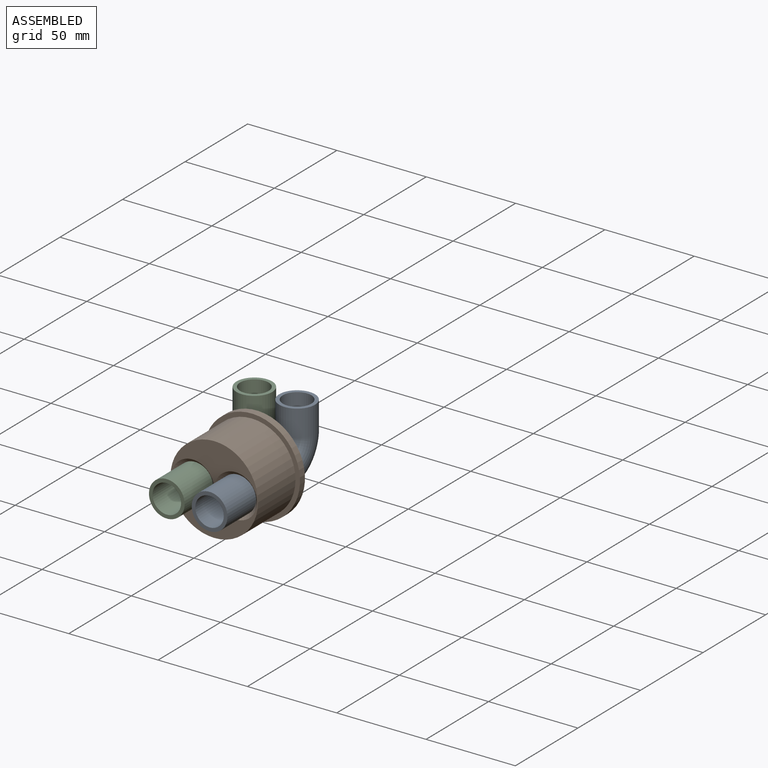
[diagram: assembled view]
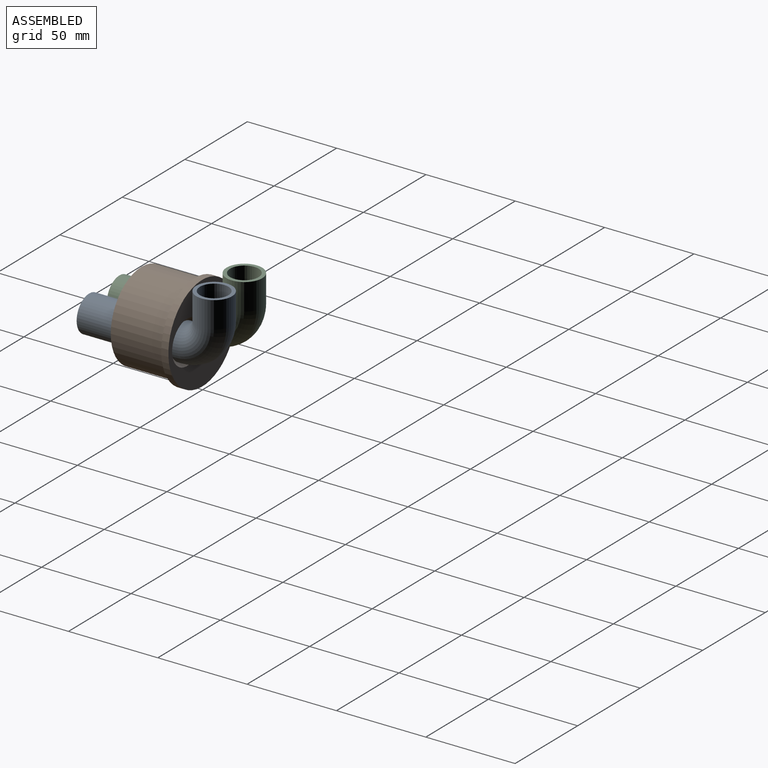
[diagram: assembled view, second angle]
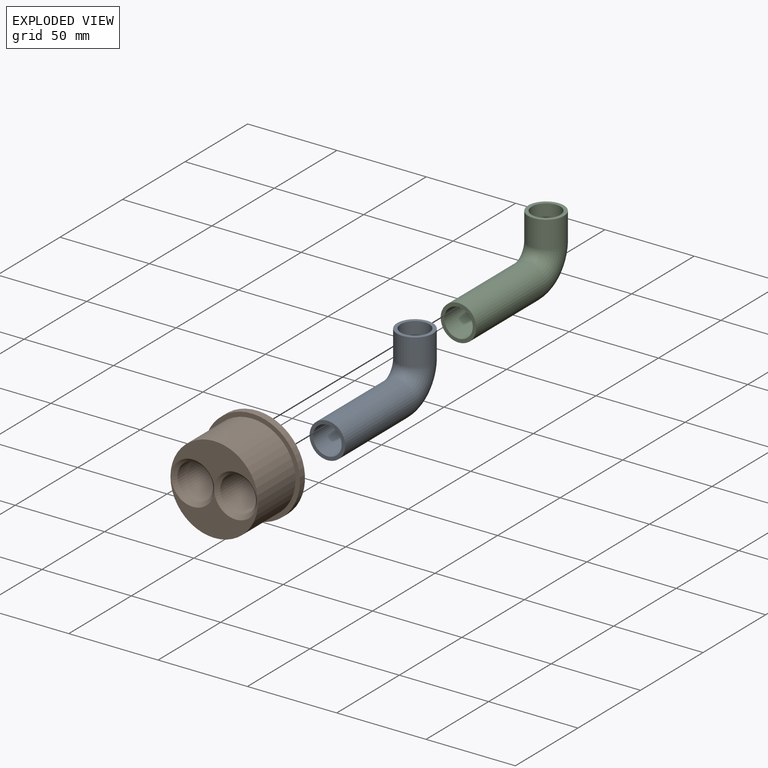
[diagram: exploded view]
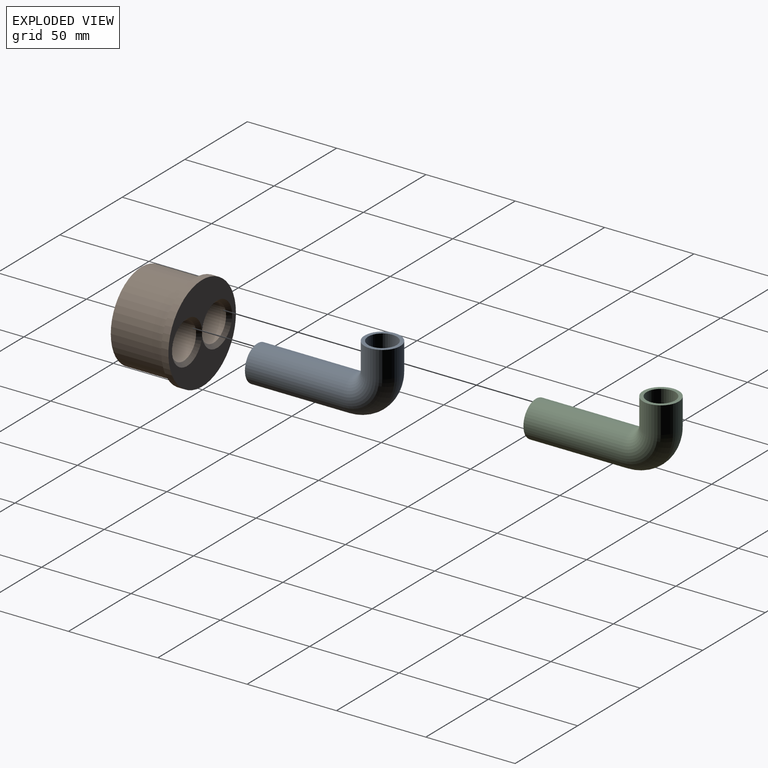
[diagram: exploded view, second angle]
ASSEMBLY  parts=3 mates=2
PART A: 8 faces, bbox 82.1x42.1x20 mm
  f0: cylinder r=8mm len=55mm, axis (1,0,0), area 2764.6mm2, adj f1,f3
  f1: torus R=15mm, axis (0,0,-1), area 1184.4mm2, adj f0,f2
  f2: cylinder r=8mm len=16mm, axis (0,-1,0), area 754mm2, adj f1,f4
  f3: plane 20x20mm, normal (-1,0,0), area 113.1mm2, adj f0,f5
  f4: plane 20x20mm, normal (0,-1,0), area 113.1mm2, adj f2,f7
  f5: cylinder r=10mm len=55mm, axis (1,0,0), area 3455.8mm2, adj f3,f6
  f6: torus R=15mm, axis (0,0,-1), area 1480.4mm2, adj f5,f7
  f7: cylinder r=10mm len=20mm, axis (0,-1,0), area 942.5mm2, adj f4,f6
PART B: 11 faces, bbox 54x54x34 mm
  f0: cylinder r=10mm len=30mm, axis (0,0,-1), area 1885mm2, adj f7,f9
  f1: cylinder r=10mm len=30mm, axis (0,0,-1), area 1885mm2, adj f8,f10
  f2: cylinder r=24.5mm len=49mm, axis (0,0,-1), area 4618.1mm2, adj f3,f6
  f3: plane 49x49mm, normal (0,0,1), area 981mm2, adj f2,f9,f10
  f4: plane 54x54mm, normal (0,0,-1), area 1385.4mm2, adj f5,f7,f8
  f5: cylinder r=27mm len=54mm, axis (0,0,-1), area 678.6mm2, adj f4,f6
  f6: plane 54x54mm, normal (0,0,1), area 404.5mm2, adj f2,f5
  f7: cone r=12mm half-angle=45deg, axis (0,0,-1), area 195.5mm2, adj f0,f4
  f8: cone r=12mm half-angle=45deg, axis (0,0,-1), area 195.5mm2, adj f1,f4
  f9: cone r=10mm half-angle=45deg, axis (0,0,1), area 195.5mm2, adj f0,f3
  f10: cone r=10mm half-angle=45deg, axis (0,0,1), area 195.5mm2, adj f1,f3
PART C: same geometry as A
PLACE A rot(axis=(-0.58,-0.58,0.58),120deg) t=(12.23,-54.9,15.87)mm
PLACE B rot(axis=(0,0.71,-0.71),180deg) t=(0.23,-0.04,15.87)mm fixed
PLACE C rot(axis=(-0.58,-0.58,0.58),120deg) t=(-11.77,-54.81,15.87)mm
MATE slider A.f0 <-> B.f0  axis (0,-1,0) through (12.23,-54.9,15.87)mm
MATE slider C.f0 <-> B.f1  axis (0,-1,0) through (-11.77,-54.81,15.87)mm
